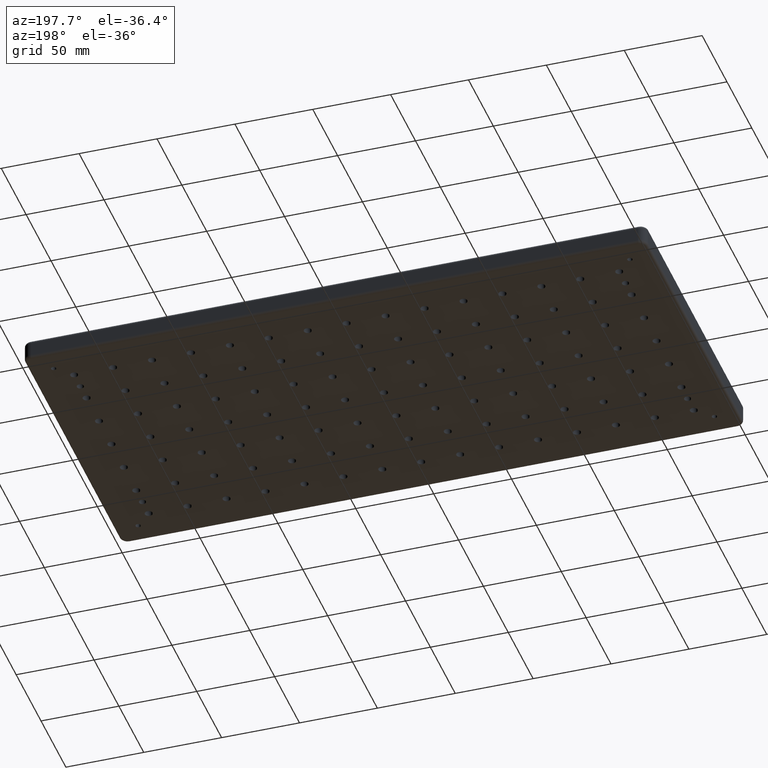
[diagram: clean part render]
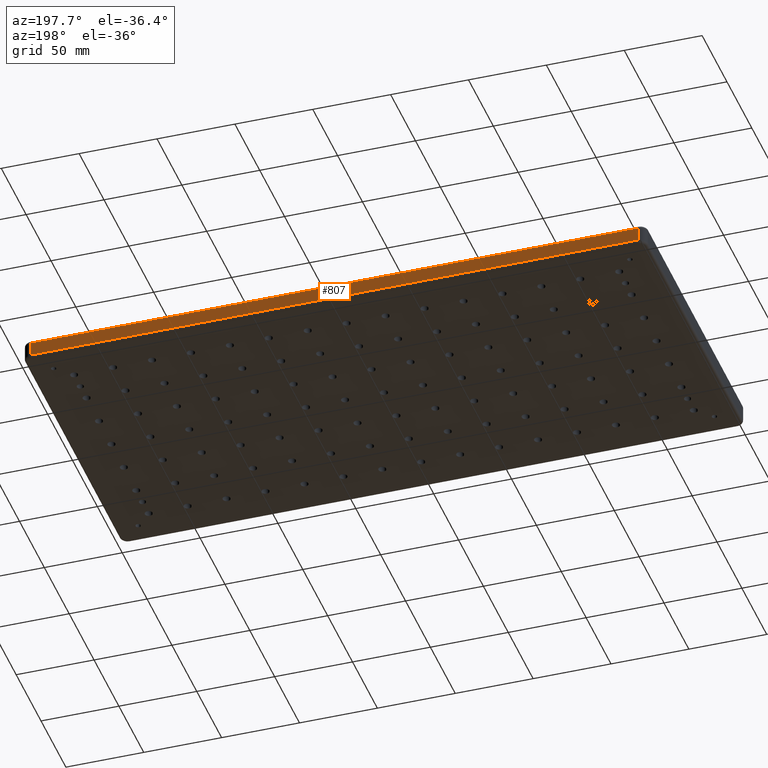
[diagram: same view with one face highlighted and labeled with its STEP entity id]
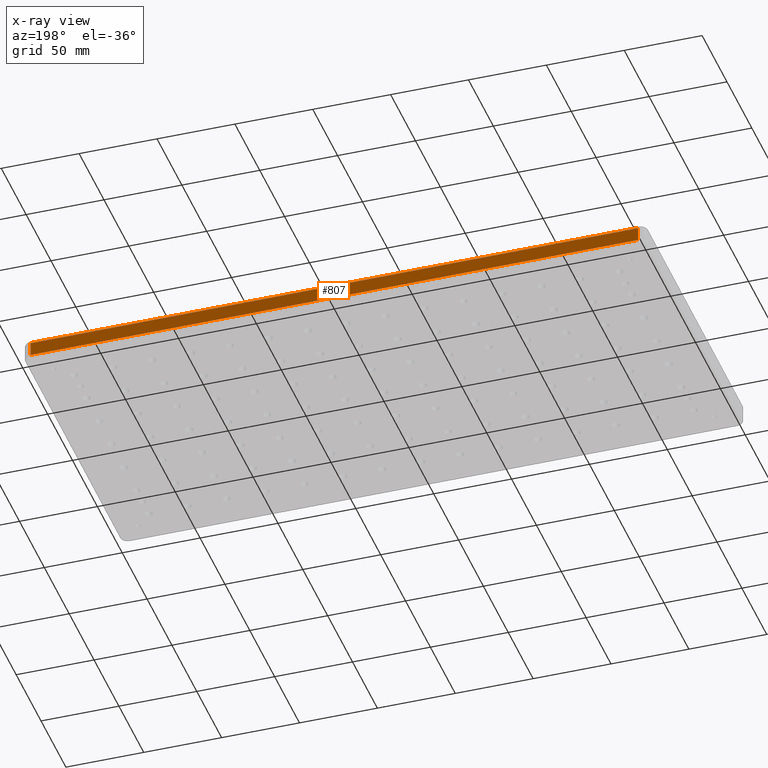
[diagram: x-ray of the same camera — body ghosted, the highlighted face saturated]
A machine part, auxiliary view. The second image highlights one B-rep face of the part: STEP entity #807.
The next image is the same camera in x-ray: the body ghosted, the highlighted face saturated — about 0% of this face is hidden behind the body in this view.
In plain terms, the highlighted planar face has unit normal (-0, 1, 0).
Its self-contained STEP definition (entity closure, byte-faithful):
#43 = ORIENTED_EDGE ( 'NONE', *, *, #826, .T. ) ;
#510 = VECTOR ( 'NONE', #4968, 1000.000000000000000 ) ;
#807 = ADVANCED_FACE ( 'NONE', ( #6183 ), #4246, .T. ) ;
#826 = EDGE_CURVE ( 'NONE', #8832, #7483, #6649, .T. ) ;
#920 = ORIENTED_EDGE ( 'NONE', *, *, #3405, .F. ) ;
#1471 = DIRECTION ( 'NONE',  ( 0.0000000000000000000, 0.0000000000000000000, 1.000000000000000000 ) ) ;
#1487 = CARTESIAN_POINT ( 'NONE',  ( -195.0000000000001100, 100.0000000000000000, -13.00000000000000000 ) ) ;
#1579 = LINE ( 'NONE', #5248, #5209 ) ;
#1894 = CARTESIAN_POINT ( 'NONE',  ( 195.0000000000001100, 100.0000000000000100, -11.00000000000000000 ) ) ;
#2254 = AXIS2_PLACEMENT_3D ( 'NONE', #1487, #8656, #4374 ) ;
#2410 = CARTESIAN_POINT ( 'NONE',  ( 195.0000000000001100, 100.0000000000000100, -2.000000000000001800 ) ) ;
#2874 = CARTESIAN_POINT ( 'NONE',  ( -195.0000000000001100, 100.0000000000000000, -13.00000000000000000 ) ) ;
#3230 = EDGE_CURVE ( 'NONE', #8194, #5443, #3846, .T. ) ;
#3405 = EDGE_CURVE ( 'NONE', #8194, #7483, #1579, .T. ) ;
#3846 = LINE ( 'NONE', #4303, #9441 ) ;
#4246 = PLANE ( 'NONE',  #2254 ) ;
#4303 = CARTESIAN_POINT ( 'NONE',  ( -195.0000000000001100, 100.0000000000000000, -11.00000000000000000 ) ) ;
#4374 = DIRECTION ( 'NONE',  ( -1.000000000000000000, -1.067522139062650100E-016, 0.0000000000000000000 ) ) ;
#4450 = EDGE_CURVE ( 'NONE', #5443, #8832, #5523, .T. ) ;
#4968 = DIRECTION ( 'NONE',  ( 0.0000000000000000000, 0.0000000000000000000, 1.000000000000000000 ) ) ;
#5209 = VECTOR ( 'NONE', #1471, 1000.000000000000000 ) ;
#5248 = CARTESIAN_POINT ( 'NONE',  ( 195.0000000000001100, 100.0000000000000100, -13.00000000000000000 ) ) ;
#5443 = VERTEX_POINT ( 'NONE', #7313 ) ;
#5523 = LINE ( 'NONE', #2874, #510 ) ;
#5780 = CARTESIAN_POINT ( 'NONE',  ( 195.0000000000001100, 100.0000000000000400, -2.000000000000000000 ) ) ;
#5792 = DIRECTION ( 'NONE',  ( -1.000000000000000000, -1.067522139062650100E-016, 0.0000000000000000000 ) ) ;
#6022 = CARTESIAN_POINT ( 'NONE',  ( -195.0000000000001100, 100.0000000000000000, -2.000000000000003600 ) ) ;
#6183 = FACE_OUTER_BOUND ( 'NONE', #7836, .T. ) ;
#6649 = LINE ( 'NONE', #5780, #8940 ) ;
#7190 = DIRECTION ( 'NONE',  ( 1.000000000000000000, 1.067522139062650100E-016, -0.0000000000000000000 ) ) ;
#7313 = CARTESIAN_POINT ( 'NONE',  ( -195.0000000000001100, 100.0000000000000000, -11.00000000000000000 ) ) ;
#7483 = VERTEX_POINT ( 'NONE', #2410 ) ;
#7836 = EDGE_LOOP ( 'NONE', ( #920, #8179, #8776, #43 ) ) ;
#8179 = ORIENTED_EDGE ( 'NONE', *, *, #3230, .T. ) ;
#8194 = VERTEX_POINT ( 'NONE', #1894 ) ;
#8656 = DIRECTION ( 'NONE',  ( -1.067522139062650100E-016, 1.000000000000000000, 0.0000000000000000000 ) ) ;
#8776 = ORIENTED_EDGE ( 'NONE', *, *, #4450, .T. ) ;
#8832 = VERTEX_POINT ( 'NONE', #6022 ) ;
#8940 = VECTOR ( 'NONE', #7190, 1000.000000000000000 ) ;
#9441 = VECTOR ( 'NONE', #5792, 1000.000000000000000 ) ;